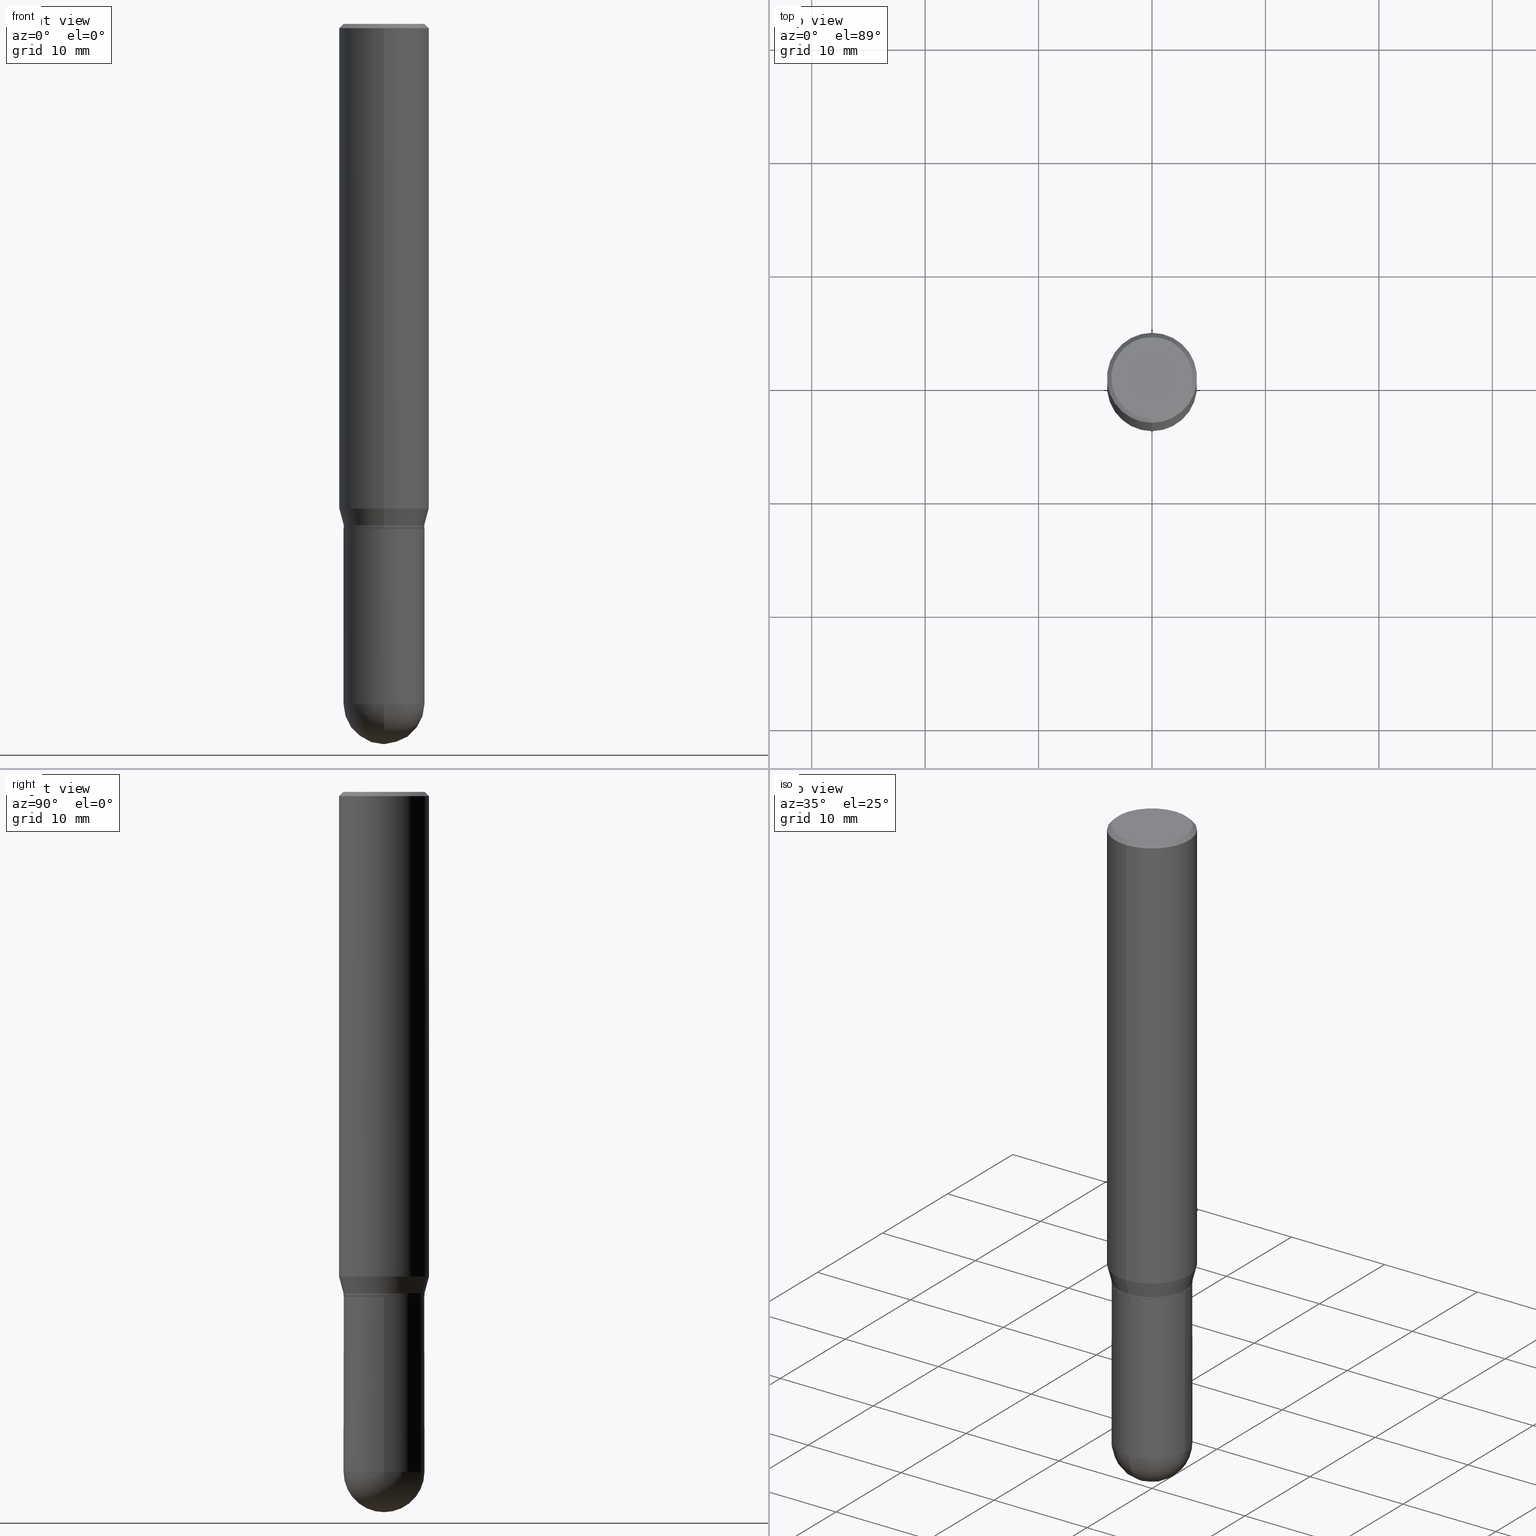
[diagram: canonical four-view strip — front | top / right | iso, engineering-drawing reading convention]
A machine part, canonical four-view strip (front | top / right | iso — engineering-drawing reading convention). The complete STEP part file that produces these views, byte-faithful:
ISO-10303-21;
HEADER;
FILE_DESCRIPTION (( 'STEP AP203' ),
    '1' );
FILE_NAME ('30922.STEP',
    '2024-03-08T15:46:29',
    ( '' ),
    ( '' ),
    'SwSTEP 2.0',
    'SolidWorks 2023',
    '' );
FILE_SCHEMA (( 'CONFIG_CONTROL_DESIGN' ));
ENDSEC;

DATA;
#1 = CONICAL_SURFACE ( 'NONE', #108, 0.1562500000000000000, 0.7853981633974485010 ) ;
#2 = FACE_OUTER_BOUND ( 'NONE', #22, .T. ) ;
#3 = AXIS2_PLACEMENT_3D ( 'NONE', #416, #60, #380 ) ;
#4 = VECTOR ( 'NONE', #77, 39.37007874015748143 ) ;
#5 = EDGE_CURVE ( 'NONE', #476, #144, #56, .T. ) ;
#6 = APPROVAL_STATUS ( 'not_yet_approved' ) ;
#7 = PLANE ( 'NONE',  #286 ) ;
#8 = DATE_AND_TIME ( #333, #392 ) ;
#9 = DIRECTION ( 'NONE',  ( -2.445561747179421972E-29, 3.491348242049456041E-15, 1.000000000000000000 ) ) ;
#10 = VERTEX_POINT ( 'NONE', #498 ) ;
#11 = EDGE_CURVE ( 'NONE', #120, #456, #127, .T. ) ;
#12 = DATE_AND_TIME ( #407, #422 ) ;
#13 = PLANE ( 'NONE',  #267 ) ;
#14 = CC_DESIGN_PERSON_AND_ORGANIZATION_ASSIGNMENT ( #209, #158, ( #189 ) ) ;
#15 = AXIS2_PLACEMENT_3D ( 'NONE', #444, #243, #335 ) ;
#16 = APPROVAL_DATE_TIME ( #87, #54 ) ;
#17 = DIRECTION ( 'NONE',  ( -6.982962677686265922E-15, -1.000000000000000000, 3.899854380677035588E-15 ) ) ;
#18 = FACE_OUTER_BOUND ( 'NONE', #25, .T. ) ;
#19 = ADVANCED_FACE ( 'NONE', ( #381 ), #469, .T. ) ;
#20 = DIRECTION ( 'NONE',  ( -2.445561747179421972E-29, 3.491348242049456041E-15, 1.000000000000000000 ) ) ;
#21 = AXIS2_PLACEMENT_3D ( 'NONE', #41, #488, #364 ) ;
#22 = EDGE_LOOP ( 'NONE', ( #32, #431, #277, #89 ) ) ;
#23 = DIRECTION ( 'NONE',  ( -2.445561747179421972E-29, 3.491348242049456041E-15, 1.000000000000000000 ) ) ;
#24 = CARTESIAN_POINT ( 'NONE',  ( 4.279733057563989082E-29, -6.109859423586548565E-15, -1.750000000000000222 ) ) ;
#25 = EDGE_LOOP ( 'NONE', ( #301, #114, #340, #42 ) ) ;
#26 = DIRECTION ( 'NONE',  ( -4.851104656540965064E-15, -0.7071067811865501263, -0.7071067811865449082 ) ) ;
#27 = ORIENTED_EDGE ( 'NONE', *, *, #173, .T. ) ;
#28 = AXIS2_PLACEMENT_3D ( 'NONE', #489, #9, #326 ) ;
#29 = LINE ( 'NONE', #309, #320 ) ;
#30 = ORIENTED_EDGE ( 'NONE', *, *, #426, .T. ) ;
#31 = ADVANCED_FACE ( 'NONE', ( #459 ), #183, .T. ) ;
#32 = ORIENTED_EDGE ( 'NONE', *, *, #307, .F. ) ;
#33 = DIRECTION ( 'NONE',  ( -2.445561747179421972E-29, 3.491348242049456041E-15, 1.000000000000000000 ) ) ;
#34 = AXIS2_PLACEMENT_3D ( 'NONE', #24, #74, #228 ) ;
#35 = ORIENTED_EDGE ( 'NONE', *, *, #281, .F. ) ;
#36 = DIRECTION ( 'NONE',  ( 2.445561747179421972E-29, -3.491348242049456041E-15, -1.000000000000000000 ) ) ;
#37 = APPROVAL_STATUS ( 'not_yet_approved' ) ;
#38 = CC_DESIGN_APPROVAL ( #401, ( #189 ) ) ;
#39 = DIRECTION ( 'NONE',  ( 2.445561747179421972E-29, -3.491348242049456041E-15, -1.000000000000000000 ) ) ;
#40 = COORDINATED_UNIVERSAL_TIME_OFFSET ( 5, 0, .BEHIND. ) ;
#41 = CARTESIAN_POINT ( 'NONE',  ( 0.000000000000000000, 0.000000000000000000, 0.000000000000000000 ) ) ;
#42 = ORIENTED_EDGE ( 'NONE', *, *, #348, .F. ) ;
#43 = DATE_AND_TIME ( #487, #491 ) ;
#44 = LINE ( 'NONE', #178, #415 ) ;
#45 = ORIENTED_EDGE ( 'NONE', *, *, #5, .T. ) ;
#46 = CALENDAR_DATE ( 2024, 8, 3 ) ;
#47 = DIRECTION ( 'NONE',  ( -2.445561747179421972E-29, 3.491348242049456041E-15, 1.000000000000000000 ) ) ;
#48 = AXIS2_PLACEMENT_3D ( 'NONE', #128, #288, #440 ) ;
#49 = CALENDAR_DATE ( 2024, 8, 3 ) ;
#50 = DIRECTION ( 'NONE',  ( 6.982962677686265922E-15, 1.000000000000000000, -3.491348242049455647E-15 ) ) ;
#51 = VERTEX_POINT ( 'NONE', #424 ) ;
#52 = CARTESIAN_POINT ( 'NONE',  ( 5.769839101313211634E-29, -8.237801070866517629E-15, -2.359399999999999942 ) ) ;
#53 = ADVANCED_FACE ( 'NONE', ( #420 ), #102, .T. ) ;
#54 = APPROVAL ( #37, 'UNSPECIFIED' ) ;
#55 = DIRECTION ( 'NONE',  ( -2.445561747179421972E-29, 3.491348242049455647E-15, 1.000000000000000000 ) ) ;
#56 = CIRCLE ( 'NONE', #351, 0.1406000000000000305 ) ;
#57 = AXIS2_PLACEMENT_3D ( 'NONE', #106, #505, #510 ) ;
#58 = EDGE_LOOP ( 'NONE', ( #100, #308, #376, #104 ) ) ;
#59 = EDGE_CURVE ( 'NONE', #51, #116, #433, .T. ) ;
#60 = DIRECTION ( 'NONE',  ( -2.445468806185136597E-29, 3.491481338843145583E-15, 1.000000000000000000 ) ) ;
#61 = EDGE_LOOP ( 'NONE', ( #438, #177 ) ) ;
#62 = CARTESIAN_POINT ( 'NONE',  ( 4.279733057563989082E-29, -6.109859423586548565E-15, -1.750000000000000222 ) ) ;
#63 = VERTEX_POINT ( 'NONE', #70 ) ;
#64 = FACE_OUTER_BOUND ( 'NONE', #86, .T. ) ;
#65 = VECTOR ( 'NONE', #305, 39.37007874015748143 ) ;
#66 = DIRECTION ( 'NONE',  ( -1.000000000000000000, 6.982962677686265922E-15, -4.883557194083112340E-29 ) ) ;
#67 = APPROVAL_PERSON_ORGANIZATION ( #200, #401, #92 ) ;
#68 = ADVANCED_FACE ( 'NONE', ( #80 ), #506, .T. ) ;
#69 = DIRECTION ( 'NONE',  ( -6.982962677686265133E-15, -1.000000000000000000, 3.491348242049456436E-15 ) ) ;
#70 = CARTESIAN_POINT ( 'NONE',  ( 0.1406000000000000028, -7.091896895458194566E-15, -1.750000000000000222 ) ) ;
#71 = ORIENTED_EDGE ( 'NONE', *, *, #221, .T. ) ;
#72 = ADVANCED_FACE ( 'NONE', ( #293 ), #238, .T. ) ;
#73 = AXIS2_PLACEMENT_3D ( 'NONE', #375, #20, #337 ) ;
#74 = DIRECTION ( 'NONE',  ( -2.445561747179421972E-29, 3.491348242049456041E-15, 1.000000000000000000 ) ) ;
#75 = VERTEX_POINT ( 'NONE', #159 ) ;
#76 = MANIFOLD_SOLID_BREP ( 'Body-Move/Copy2[2]', #285 ) ;
#77 = DIRECTION ( 'NONE',  ( -4.937700262164631661E-15, -0.7071067811865571207, 0.7071067811865379138 ) ) ;
#78 = CC_DESIGN_DATE_AND_TIME_ASSIGNMENT ( #12, #439, ( #189 ) ) ;
#79 = VERTEX_POINT ( 'NONE', #325 ) ;
#80 = FACE_OUTER_BOUND ( 'NONE', #225, .T. ) ;
#81 = ORIENTED_EDGE ( 'NONE', *, *, #11, .F. ) ;
#82 = CONICAL_SURFACE ( 'NONE', #99, 0.1401000000000000023, 0.7853981633974653764 ) ;
#83 = PERSON_AND_ORGANIZATION ( #91, #253 ) ;
#84 = CARTESIAN_POINT ( 'NONE',  ( 9.863434782231850151E-16, 0.1412499999999999867, -5.152038148636808650E-16 ) ) ;
#85 = EDGE_CURVE ( 'NONE', #208, #63, #298, .T. ) ;
#86 = EDGE_LOOP ( 'NONE', ( #303, #350, #414, #418 ) ) ;
#87 = DATE_AND_TIME ( #46, #241 ) ;
#88 = DIRECTION ( 'NONE',  ( 5.024295867788147587E-15, 0.7071067811865620056, 0.7071067811865330288 ) ) ;
#89 = ORIENTED_EDGE ( 'NONE', *, *, #270, .F. ) ;
#90 = CARTESIAN_POINT ( 'NONE',  ( 3.668342620769144169E-31, -5.237022363074199050E-17, -0.01500000000000004455 ) ) ;
#91 = PERSON ( 'UNSPECIFIED', 'UNSPECIFIED', 'UNSPECIFIED', ('UNSPECIFIED'), ('UNSPECIFIED'), ('UNSPECIFIED') ) ;
#92 = APPROVAL_ROLE ( '' ) ;
#93 = CARTESIAN_POINT ( 'NONE',  ( -9.990230864786434913E-16, -0.1406000000000083017, -2.359399999999999498 ) ) ;
#94 = CIRCLE ( 'NONE', #449, 0.1562500000000000000 ) ;
#95 = ADVANCED_FACE ( 'NONE', ( #250 ), #13, .F. ) ;
#96 = CARTESIAN_POINT ( 'NONE',  ( 5.769839101313211634E-29, -8.237801070866517629E-15, -2.359399999999999942 ) ) ;
#97 = DIRECTION ( 'NONE',  ( 1.000000000000000000, -6.982962677686270655E-15, 0.000000000000000000 ) ) ;
#98 = DIRECTION ( 'NONE',  ( 1.839019923739597160E-15, 0.2588190451025245142, 0.9659258262890673130 ) ) ;
#99 = AXIS2_PLACEMENT_3D ( 'NONE', #145, #497, #494 ) ;
#100 = ORIENTED_EDGE ( 'NONE', *, *, #213, .F. ) ;
#101 = FACE_OUTER_BOUND ( 'NONE', #429, .T. ) ;
#102 = CYLINDRICAL_SURFACE ( 'NONE', #490, 0.1562500000000000000 ) ;
#103 = LINE ( 'NONE', #300, #148 ) ;
#104 = ORIENTED_EDGE ( 'NONE', *, *, #492, .F. ) ;
#105 = EDGE_CURVE ( 'NONE', #51, #79, #134, .T. ) ;
#106 = CARTESIAN_POINT ( 'NONE',  ( 3.668342620769144169E-31, -5.237022363074199050E-17, -0.01500000000000004455 ) ) ;
#107 = CC_DESIGN_PERSON_AND_ORGANIZATION_ASSIGNMENT ( #249, #121, ( #378 ) ) ;
#108 = AXIS2_PLACEMENT_3D ( 'NONE', #135, #39, #296 ) ;
#109 = DIRECTION ( 'NONE',  ( -1.807323732225326984E-15, -0.2588190451025177419, 0.9659258262890690894 ) ) ;
#110 = AXIS2_PLACEMENT_3D ( 'NONE', #356, #266, #156 ) ;
#111 = LENGTH_MEASURE_WITH_UNIT ( LENGTH_MEASURE( 0.02539999999999999897 ), #357 );
#112 = DIRECTION ( 'NONE',  ( 1.000000000000000000, -6.982962677686270655E-15, 0.000000000000000000 ) ) ;
#113 = CARTESIAN_POINT ( 'NONE',  ( 0.000000000000000000, 0.000000000000000000, 0.000000000000000000 ) ) ;
#114 = ORIENTED_EDGE ( 'NONE', *, *, #387, .T. ) ;
#115 = DIRECTION ( 'NONE',  ( 1.000000000000000000, 0.000000000000000000, 0.000000000000000000 ) ) ;
#116 = VERTEX_POINT ( 'NONE', #210 ) ;
#117 = CC_DESIGN_PERSON_AND_ORGANIZATION_ASSIGNMENT ( #202, #242, ( #344 ) ) ;
#118 = AXIS2_PLACEMENT_3D ( 'NONE', #417, #413, #500 ) ;
#119 = CC_DESIGN_SECURITY_CLASSIFICATION ( #378, ( #344 ) ) ;
#120 = VERTEX_POINT ( 'NONE', #479 ) ;
#121 = PERSON_AND_ORGANIZATION_ROLE ( 'classification_officer' ) ;
#122 = ORIENTED_EDGE ( 'NONE', *, *, #462, .F. ) ;
#123 = EDGE_CURVE ( 'NONE', #75, #409, #195, .T. ) ;
#124 = COORDINATED_UNIVERSAL_TIME_OFFSET ( 5, 0, .BEHIND. ) ;
#125 = DIRECTION ( 'NONE',  ( -2.445561747179421972E-29, 3.491348242049456041E-15, 1.000000000000000000 ) ) ;
#126 = ORIENTED_EDGE ( 'NONE', *, *, #123, .F. ) ;
#127 = CIRCLE ( 'NONE', #231, 0.1401000000000000023 ) ;
#128 = CARTESIAN_POINT ( 'NONE',  ( 4.255277440092194484E-29, -6.074945941166053740E-15, -1.739999999999999991 ) ) ;
#129 = APPROVAL_ROLE ( '' ) ;
#130 = UNCERTAINTY_MEASURE_WITH_UNIT (LENGTH_MEASURE( 1.000000000000000082E-05 ), #152, 'distance_accuracy_value', 'NONE');
#131 = CARTESIAN_POINT ( 'NONE',  ( 5.757815463287349061E-29, -8.255019604862529009E-15, -2.359399999999999942 ) ) ;
#132 = DATE_AND_TIME ( #49, #136 ) ;
#133 = DIRECTION ( 'NONE',  ( 2.445561747179421972E-29, -3.491348242049455647E-15, -1.000000000000000000 ) ) ;
#134 = CIRCLE ( 'NONE', #427, 0.1405999999999999195 ) ;
#135 = CARTESIAN_POINT ( 'NONE',  ( 3.668342620769144169E-31, -5.237022363074199050E-17, -0.01500000000000004455 ) ) ;
#136 = LOCAL_TIME ( 10, 46, 29.00000000000000000, #481 ) ;
#137 = FACE_OUTER_BOUND ( 'NONE', #323, .T. ) ;
#138 = DIRECTION ( 'NONE',  ( -2.445561747179421692E-29, 3.491348242049455647E-15, 1.000000000000000000 ) ) ;
#139 = ORIENTED_EDGE ( 'NONE', *, *, #313, .T. ) ;
#140 = PLANE ( 'NONE',  #162 ) ;
#141 = AXIS2_PLACEMENT_3D ( 'NONE', #317, #66, #355 ) ;
#142 = DIRECTION ( 'NONE',  ( 1.000000000000000000, -6.982962677686268288E-15, 4.876176775795936353E-29 ) ) ;
#143 = CARTESIAN_POINT ( 'NONE',  ( 6.107660196449910766E-29, -8.737312614105869844E-15, -2.500000000000000000 ) ) ;
#144 = VERTEX_POINT ( 'NONE', #398 ) ;
#145 = CARTESIAN_POINT ( 'NONE',  ( 4.279733057563989082E-29, -6.109859423586548565E-15, -1.750000000000000222 ) ) ;
#146 = ORIENTED_EDGE ( 'NONE', *, *, #11, .T. ) ;
#147 = LINE ( 'NONE', #273, #4 ) ;
#148 = VECTOR ( 'NONE', #26, 39.37007874015748143 ) ;
#149 = CARTESIAN_POINT ( 'NONE',  ( 0.000000000000000000, 0.000000000000000000, 0.000000000000000000 ) ) ;
#150 =( NAMED_UNIT ( * ) SI_UNIT ( $, .STERADIAN. ) SOLID_ANGLE_UNIT ( ) );
#151 = ORIENTED_EDGE ( 'NONE', *, *, #213, .T. ) ;
#152 =( CONVERSION_BASED_UNIT ( 'INCH', #111 ) LENGTH_UNIT ( ) NAMED_UNIT ( #198 ) );
#153 = CARTESIAN_POINT ( 'NONE',  ( 5.757815463287349061E-29, -8.255019604862529009E-15, -2.359399999999999942 ) ) ;
#154 = EDGE_LOOP ( 'NONE', ( #27, #185, #196, #385 ) ) ;
#155 = AXIS2_PLACEMENT_3D ( 'NONE', #96, #458, #97 ) ;
#156 = DIRECTION ( 'NONE',  ( -6.982962677686265922E-15, -1.000000000000000000, 3.491348242049456436E-15 ) ) ;
#157 = ADVANCED_FACE ( 'NONE', ( #203 ), #1, .T. ) ;
#158 = PERSON_AND_ORGANIZATION_ROLE ( 'creator' ) ;
#159 = CARTESIAN_POINT ( 'NONE',  ( -1.091087918388478779E-15, -0.1562500000000000833, -0.01499999999999949811 ) ) ;
#160 = EDGE_LOOP ( 'NONE', ( #395, #471, #283, #287 ) ) ;
#161 = DIRECTION ( 'NONE',  ( 1.000000000000000000, -6.982962677686265133E-15, 0.000000000000000000 ) ) ;
#162 = AXIS2_PLACEMENT_3D ( 'NONE', #62, #55, #258 ) ;
#163 = CIRCLE ( 'NONE', #268, 0.1405999999999999195 ) ;
#164 = CARTESIAN_POINT ( 'NONE',  ( 4.279733057563989082E-29, -6.109859423586548565E-15, -1.750000000000000222 ) ) ;
#165 = APPROVAL_DATE_TIME ( #43, #176 ) ;
#166 = DIRECTION ( 'NONE',  ( -2.445561747179421692E-29, 3.491348242049455647E-15, 1.000000000000000000 ) ) ;
#167 = ORIENTED_EDGE ( 'NONE', *, *, #261, .F. ) ;
#168 = CARTESIAN_POINT ( 'NONE',  ( 0.1406000000000000583, -8.155751259403701439E-15, -2.359399999999999942 ) ) ;
#169 = VECTOR ( 'NONE', #166, 39.37007874015748143 ) ;
#170 = DIRECTION ( 'NONE',  ( 1.000000000000000000, -6.982962677686265133E-15, 0.000000000000000000 ) ) ;
#171 = CC_DESIGN_APPROVAL ( #54, ( #344 ) ) ;
#172 = ADVANCED_FACE ( 'NONE', ( #199 ), #7, .F. ) ;
#173 = EDGE_CURVE ( 'NONE', #456, #120, #399, .T. ) ;
#174 = DIRECTION ( 'NONE',  ( -6.982962677686265133E-15, -1.000000000000000000, 3.496765431890256920E-15 ) ) ;
#175 = LINE ( 'NONE', #460, #391 ) ;
#176 = APPROVAL ( #404, 'UNSPECIFIED' ) ;
#177 = ORIENTED_EDGE ( 'NONE', *, *, #307, .T. ) ;
#178 = CARTESIAN_POINT ( 'NONE',  ( -1.091087918388478976E-15, -0.1562500000000000000, 5.455231628202275927E-16 ) ) ;
#179 = CONICAL_SURFACE ( 'NONE', #251, 0.1405999999999999195, 0.2617993877991497964 ) ;
#180 = CIRCLE ( 'NONE', #57, 0.1562500000000000000 ) ;
#181 = EDGE_LOOP ( 'NONE', ( #496, #146, #403, #425 ) ) ;
#182 = LINE ( 'NONE', #346, #65 ) ;
#183 = CYLINDRICAL_SURFACE ( 'NONE', #421, 0.1406000000000000028 ) ;
#184 = CARTESIAN_POINT ( 'NONE',  ( 1.110223024625197561E-15, 0.1562499999999941436, -1.681593404861547514 ) ) ;
#185 = ORIENTED_EDGE ( 'NONE', *, *, #194, .T. ) ;
#186 = FACE_OUTER_BOUND ( 'NONE', #160, .T. ) ;
#187 = ORIENTED_EDGE ( 'NONE', *, *, #358, .F. ) ;
#188 = CARTESIAN_POINT ( 'NONE',  ( 0.000000000000000000, 0.000000000000000000, 0.000000000000000000 ) ) ;
#189 = PRODUCT_DEFINITION ( 'UNKNOWN', '', #344, #396 ) ;
#190 = PERSON_AND_ORGANIZATION ( #91, #253 ) ;
#191 = ORIENTED_EDGE ( 'NONE', *, *, #492, .T. ) ;
#192 = APPLICATION_CONTEXT ( 'configuration controlled 3d designs of mechanical parts and assemblies' ) ;
#193 = FACE_OUTER_BOUND ( 'NONE', #58, .T. ) ;
#194 = EDGE_CURVE ( 'NONE', #120, #10, #374, .T. ) ;
#195 = CIRCLE ( 'NONE', #371, 0.1562500000000000000 ) ;
#196 = ORIENTED_EDGE ( 'NONE', *, *, #299, .F. ) ;
#197 = APPROVAL_PERSON_ORGANIZATION ( #83, #176, #324 ) ;
#198 = DIMENSIONAL_EXPONENTS ( 1.000000000000000000, 0.000000000000000000, 0.000000000000000000, 0.000000000000000000, 0.000000000000000000, 0.000000000000000000, 0.000000000000000000 ) ;
#199 = FACE_OUTER_BOUND ( 'NONE', #280, .T. ) ;
#200 = PERSON_AND_ORGANIZATION ( #91, #253 ) ;
#201 = CARTESIAN_POINT ( 'NONE',  ( 1.110223024625156343E-15, 0.1562500000000000000, -5.455231628202275927E-16 ) ) ;
#202 = PERSON_AND_ORGANIZATION ( #91, #253 ) ;
#203 = FACE_OUTER_BOUND ( 'NONE', #229, .T. ) ;
#204 = AXIS2_PLACEMENT_3D ( 'NONE', #164, #47, #17 ) ;
#205 = COORDINATED_UNIVERSAL_TIME_OFFSET ( 5, 0, .BEHIND. ) ;
#206 = ADVANCED_FACE ( 'NONE', ( #18 ), #482, .T. ) ;
#207 = CARTESIAN_POINT ( 'NONE',  ( 4.279570410823989044E-29, -6.110092342975505460E-15, -1.750000000000000222 ) ) ;
#208 = VERTEX_POINT ( 'NONE', #168 ) ;
#209 = PERSON_AND_ORGANIZATION ( #91, #253 ) ;
#210 = CARTESIAN_POINT ( 'NONE',  ( -1.091087918388437956E-15, -0.1562500000000058842, -1.681593404861546404 ) ) ;
#211 = DIRECTION ( 'NONE',  ( -2.445468806185136597E-29, 3.491481338843145583E-15, 1.000000000000000000 ) ) ;
#212 = PRODUCT ( '30922', '30922', '', ( #274 ) ) ;
#213 = EDGE_CURVE ( 'NONE', #475, #409, #331, .T. ) ;
#214 = CIRCLE ( 'NONE', #118, 0.1412499999999999867 ) ;
#215 = CARTESIAN_POINT ( 'NONE',  ( 4.112440505238597920E-29, -5.871028177905320877E-15, -1.681593404861546848 ) ) ;
#216 = ORIENTED_EDGE ( 'NONE', *, *, #485, .F. ) ;
#217 = FACE_OUTER_BOUND ( 'NONE', #154, .T. ) ;
#218 = CARTESIAN_POINT ( 'NONE',  ( 4.278510276690399296E-29, -6.108113749465524534E-15, -1.749500000000000277 ) ) ;
#219 = VERTEX_POINT ( 'NONE', #368 ) ;
#220 = CARTESIAN_POINT ( 'NONE',  ( -0.1406000000000000028, -6.174923620442310269E-15, -1.750000000000000222 ) ) ;
#221 = EDGE_CURVE ( 'NONE', #116, #475, #465, .T. ) ;
#222 = AXIS2_PLACEMENT_3D ( 'NONE', #52, #211, #383 ) ;
#223 = VECTOR ( 'NONE', #138, 39.37007874015748143 ) ;
#224 = AXIS2_PLACEMENT_3D ( 'NONE', #113, #361, #69 ) ;
#225 = EDGE_LOOP ( 'NONE', ( #512, #406, #234, #332 ) ) ;
#226 = CARTESIAN_POINT ( 'NONE',  ( 9.818045524827470871E-16, 0.1405999999999918426, -2.359400000000000386 ) ) ;
#227 = ORIENTED_EDGE ( 'NONE', *, *, #236, .F. ) ;
#228 = DIRECTION ( 'NONE',  ( -6.982962677686265922E-15, -1.000000000000000000, 3.899854380677035588E-15 ) ) ;
#229 = EDGE_LOOP ( 'NONE', ( #442, #216, #360, #191 ) ) ;
#230 = MANIFOLD_SOLID_BREP ( 'Body-Move/Copy2[1]', #507 ) ;
#231 = AXIS2_PLACEMENT_3D ( 'NONE', #272, #461, #316 ) ;
#232 = CC_DESIGN_APPROVAL ( #176, ( #378 ) ) ;
#233 = DIRECTION ( 'NONE',  ( 6.982962677686265922E-15, 1.000000000000000000, -3.885985766236502230E-15 ) ) ;
#234 = ORIENTED_EDGE ( 'NONE', *, *, #348, .T. ) ;
#235 = CYLINDRICAL_SURFACE ( 'NONE', #224, 0.1562500000000000000 ) ;
#236 = EDGE_CURVE ( 'NONE', #342, #63, #499, .T. ) ;
#237 = ORIENTED_EDGE ( 'NONE', *, *, #338, .T. ) ;
#238 = CYLINDRICAL_SURFACE ( 'NONE', #15, 0.1406000000000000028 ) ;
#239 = CIRCLE ( 'NONE', #315, 0.1406000000000000860 ) ;
#240 = ORIENTED_EDGE ( 'NONE', *, *, #173, .F. ) ;
#241 = LOCAL_TIME ( 10, 46, 29.00000000000000000, #124 ) ;
#242 = PERSON_AND_ORGANIZATION_ROLE ( 'creator' ) ;
#243 = DIRECTION ( 'NONE',  ( -2.445468806185136597E-29, 3.491481338843145583E-15, 1.000000000000000000 ) ) ;
#244 = EDGE_LOOP ( 'NONE', ( #45, #501, #187, #394, #30 ) ) ;
#245 = PERSON_AND_ORGANIZATION_ROLE ( 'design_supplier' ) ;
#246 = DIRECTION ( 'NONE',  ( -1.000000000000000000, 7.105427357601001070E-15, -4.926315508542082329E-29 ) ) ;
#247 = EDGE_CURVE ( 'NONE', #79, #51, #328, .T. ) ;
#248 = VERTEX_POINT ( 'NONE', #93 ) ;
#249 = PERSON_AND_ORGANIZATION ( #91, #253 ) ;
#250 = FACE_OUTER_BOUND ( 'NONE', #61, .T. ) ;
#251 = AXIS2_PLACEMENT_3D ( 'NONE', #255, #419, #264 ) ;
#252 = COORDINATED_UNIVERSAL_TIME_OFFSET ( 5, 0, .BEHIND. ) ;
#253 = ORGANIZATION ( 'UNSPECIFIED', 'UNSPECIFIED', '' ) ;
#254 = CARTESIAN_POINT ( 'NONE',  ( 0.1406000000000000028, -9.818045524826893030E-16, 6.855904546769086274E-30 ) ) ;
#255 = CARTESIAN_POINT ( 'NONE',  ( 4.255277440092194484E-29, -6.074945941166053740E-15, -1.739999999999999991 ) ) ;
#256 = EDGE_CURVE ( 'NONE', #319, #248, #239, .T. ) ;
#257 = EDGE_LOOP ( 'NONE', ( #71, #151, #126, #167 ) ) ;
#258 = DIRECTION ( 'NONE',  ( -6.982962677686265922E-15, -1.000000000000000000, 3.491348242049455647E-15 ) ) ;
#259 = VECTOR ( 'NONE', #109, 39.37007874015748143 ) ;
#260 = CARTESIAN_POINT ( 'NONE',  ( 1.110223024625197561E-15, 0.1562499999999999445, -0.01500000000000059099 ) ) ;
#261 = EDGE_CURVE ( 'NONE', #116, #75, #44, .T. ) ;
#262 = DIRECTION ( 'NONE',  ( -2.445561747179421692E-29, 3.491348242049455647E-15, 1.000000000000000000 ) ) ;
#263 = VERTEX_POINT ( 'NONE', #412 ) ;
#264 = DIRECTION ( 'NONE',  ( -6.982962677686266711E-15, -1.000000000000000000, 3.885985766236507752E-15 ) ) ;
#265 = CARTESIAN_POINT ( 'NONE',  ( 5.769839101313211634E-29, -8.237801070866517629E-15, -2.359399999999999942 ) ) ;
#266 = DIRECTION ( 'NONE',  ( -2.445561747179421972E-29, 3.491348242049456041E-15, 1.000000000000000000 ) ) ;
#267 = AXIS2_PLACEMENT_3D ( 'NONE', #84, #133, #50 ) ;
#268 = AXIS2_PLACEMENT_3D ( 'NONE', #352, #430, #349 ) ;
#269 = EDGE_LOOP ( 'NONE', ( #122, #434, #345, #466 ) ) ;
#270 = EDGE_CURVE ( 'NONE', #263, #409, #182, .T. ) ;
#271 =( NAMED_UNIT ( * ) PLANE_ANGLE_UNIT ( ) SI_UNIT ( $, .RADIAN. ) );
#272 = CARTESIAN_POINT ( 'NONE',  ( 4.279733057563989082E-29, -6.109859423586548565E-15, -1.750000000000000222 ) ) ;
#273 = CARTESIAN_POINT ( 'NONE',  ( -9.783130711438031058E-16, -0.1401000000000061085, -1.749999999999999556 ) ) ;
#274 = MECHANICAL_CONTEXT ( 'NONE', #192, 'mechanical' ) ;
#275 = AXIS2_PLACEMENT_3D ( 'NONE', #149, #33, #334 ) ;
#276 = AXIS2_PLACEMENT_3D ( 'NONE', #188, #470, #115 ) ;
#277 = ORIENTED_EDGE ( 'NONE', *, *, #123, .T. ) ;
#278 = DIRECTION ( 'NONE',  ( -1.000000000000000000, 6.982962677686265922E-15, -4.883557194083112340E-29 ) ) ;
#279 = ADVANCED_FACE ( 'NONE', ( #502 ), #82, .T. ) ;
#280 = EDGE_LOOP ( 'NONE', ( #291, #369 ) ) ;
#281 = EDGE_CURVE ( 'NONE', #144, #342, #175, .T. ) ;
#282 = CARTESIAN_POINT ( 'NONE',  ( 0.000000000000000000, 0.000000000000000000, 0.000000000000000000 ) ) ;
#283 = ORIENTED_EDGE ( 'NONE', *, *, #426, .F. ) ;
#284 = CARTESIAN_POINT ( 'NONE',  ( 9.954703727999429753E-16, 0.1400999999999938961, -1.750000000000000666 ) ) ;
#285 = CLOSED_SHELL ( 'NONE', ( #206, #436, #453, #53, #322, #359, #445, #157, #95, #366, #279, #68 ) ) ;
#286 = AXIS2_PLACEMENT_3D ( 'NONE', #447, #408, #370 ) ;
#287 = ORIENTED_EDGE ( 'NONE', *, *, #338, .F. ) ;
#288 = DIRECTION ( 'NONE',  ( -2.445561747179421972E-29, 3.491348242049456041E-15, 1.000000000000000000 ) ) ;
#289 = PRODUCT_DEFINITION_SHAPE ( 'NONE', 'NONE',  #189 ) ;
#290 = EDGE_CURVE ( 'NONE', #486, #75, #103, .T. ) ;
#291 = ORIENTED_EDGE ( 'NONE', *, *, #358, .T. ) ;
#292 = DATE_TIME_ROLE ( 'classification_date' ) ;
#293 = FACE_OUTER_BOUND ( 'NONE', #509, .T. ) ;
#294 = CC_DESIGN_DATE_AND_TIME_ASSIGNMENT ( #8, #292, ( #378 ) ) ;
#295 = SHAPE_DEFINITION_REPRESENTATION ( #289, #467 ) ;
#296 = DIRECTION ( 'NONE',  ( 6.982962677686265133E-15, 1.000000000000000000, -3.496765431890256920E-15 ) ) ;
#297 = AXIS2_PLACEMENT_3D ( 'NONE', #207, #484, #161 ) ;
#298 = LINE ( 'NONE', #254, #377 ) ;
#299 = EDGE_CURVE ( 'NONE', #219, #10, #508, .T. ) ;
#300 = CARTESIAN_POINT ( 'NONE',  ( -1.071952812151801215E-15, -0.1562500000000000833, -0.01499999999999949811 ) ) ;
#301 = ORIENTED_EDGE ( 'NONE', *, *, #299, .T. ) ;
#302 = LINE ( 'NONE', #455, #448 ) ;
#303 = ORIENTED_EDGE ( 'NONE', *, *, #397, .F. ) ;
#304 = CIRCLE ( 'NONE', #362, 0.1406000000000000028 ) ;
#305 = DIRECTION ( 'NONE',  ( 4.937700262164548831E-15, 0.7071067811865452413, -0.7071067811865497932 ) ) ;
#306 = CIRCLE ( 'NONE', #110, 0.1412499999999999867 ) ;
#307 = EDGE_CURVE ( 'NONE', #486, #263, #214, .T. ) ;
#308 = ORIENTED_EDGE ( 'NONE', *, *, #384, .T. ) ;
#309 = CARTESIAN_POINT ( 'NONE',  ( -9.818045524826885142E-16, -0.1405999999999999195, 4.908835628321532868E-16 ) ) ;
#310 = DIRECTION ( 'NONE',  ( -2.445468806185136597E-29, 3.491481338843145583E-15, 1.000000000000000000 ) ) ;
#311 = DIRECTION ( 'NONE',  ( -2.445468806185136877E-29, 3.491481338843145188E-15, 1.000000000000000000 ) ) ;
#312 = CARTESIAN_POINT ( 'NONE',  ( -9.818045524826459157E-16, -0.1406000000000059980, -1.739999999999999547 ) ) ;
#313 = EDGE_CURVE ( 'NONE', #144, #248, #473, .T. ) ;
#314 = CC_DESIGN_PERSON_AND_ORGANIZATION_ASSIGNMENT ( #190, #330, ( #212 ) ) ;
#315 = AXIS2_PLACEMENT_3D ( 'NONE', #131, #246, #405 ) ;
#316 = DIRECTION ( 'NONE',  ( -6.982962677686265922E-15, -1.000000000000000000, 3.899854380677035588E-15 ) ) ;
#317 = CARTESIAN_POINT ( 'NONE',  ( 5.757815463287349061E-29, -8.255019604862529009E-15, -2.359399999999999942 ) ) ;
#318 = CARTESIAN_POINT ( 'NONE',  ( 3.668342620769144169E-31, -5.237022363074199050E-17, -0.01500000000000004455 ) ) ;
#319 = VERTEX_POINT ( 'NONE', #143 ) ;
#320 = VECTOR ( 'NONE', #341, 39.37007874015748143 ) ;
#321 = CIRCLE ( 'NONE', #354, 0.1406000000000000860 ) ;
#322 = ADVANCED_FACE ( 'NONE', ( #101 ), #179, .T. ) ;
#323 = EDGE_LOOP ( 'NONE', ( #240, #81 ) ) ;
#324 = APPROVAL_ROLE ( '' ) ;
#325 = CARTESIAN_POINT ( 'NONE',  ( 1.054623055551970126E-15, 0.1405999999999938410, -1.740000000000000657 ) ) ;
#326 = DIRECTION ( 'NONE',  ( -6.982962677686265133E-15, -1.000000000000000000, 3.496765431890256920E-15 ) ) ;
#327 = APPLICATION_CONTEXT ( 'configuration controlled 3d designs of mechanical parts and assemblies' ) ;
#328 = CIRCLE ( 'NONE', #48, 0.1405999999999999195 ) ;
#329 = CONICAL_SURFACE ( 'NONE', #410, 0.1562500000000000000, 0.7853981633974485010 ) ;
#330 = PERSON_AND_ORGANIZATION_ROLE ( 'design_owner' ) ;
#331 = LINE ( 'NONE', #201, #169 ) ;
#332 = ORIENTED_EDGE ( 'NONE', *, *, #247, .F. ) ;
#333 = CALENDAR_DATE ( 2024, 8, 3 ) ;
#334 = DIRECTION ( 'NONE',  ( -6.982962677686266711E-15, -1.000000000000000000, 3.491348242049456436E-15 ) ) ;
#335 = DIRECTION ( 'NONE',  ( 1.000000000000000000, -6.982962677686268288E-15, 4.876176775795936353E-29 ) ) ;
#336 = APPROVAL_PERSON_ORGANIZATION ( #373, #54, #129 ) ;
#337 = DIRECTION ( 'NONE',  ( -6.982962677686266711E-15, -1.000000000000000000, 3.885985766236507752E-15 ) ) ;
#338 = EDGE_CURVE ( 'NONE', #248, #208, #353, .T. ) ;
#339 = LINE ( 'NONE', #495, #223 ) ;
#340 = ORIENTED_EDGE ( 'NONE', *, *, #105, .F. ) ;
#341 = DIRECTION ( 'NONE',  ( -2.445561747179421692E-29, 3.491348242049455647E-15, 1.000000000000000000 ) ) ;
#342 = VERTEX_POINT ( 'NONE', #220 ) ;
#343 = DIRECTION ( 'NONE',  ( -6.982962677686265133E-15, -1.000000000000000000, 3.885985766236507752E-15 ) ) ;
#344 = PRODUCT_DEFINITION_FORMATION_WITH_SPECIFIED_SOURCE ( 'ANY', '', #212, .NOT_KNOWN. ) ;
#345 = ORIENTED_EDGE ( 'NONE', *, *, #313, .F. ) ;
#346 = CARTESIAN_POINT ( 'NONE',  ( 1.091087918388479371E-15, 0.1562499999999999445, -0.01500000000000059099 ) ) ;
#347 = DIRECTION ( 'NONE',  ( -2.445561747179421972E-29, 3.491348242049456041E-15, 1.000000000000000000 ) ) ;
#348 = EDGE_CURVE ( 'NONE', #219, #51, #29, .T. ) ;
#349 = DIRECTION ( 'NONE',  ( -6.982962677686265133E-15, -1.000000000000000000, 3.885985766236507752E-15 ) ) ;
#350 = ORIENTED_EDGE ( 'NONE', *, *, #247, .T. ) ;
#351 = AXIS2_PLACEMENT_3D ( 'NONE', #265, #310, #112 ) ;
#352 = CARTESIAN_POINT ( 'NONE',  ( 4.278510276690399296E-29, -6.108113749465524534E-15, -1.749500000000000277 ) ) ;
#353 = CIRCLE ( 'NONE', #222, 0.1406000000000000305 ) ;
#354 = AXIS2_PLACEMENT_3D ( 'NONE', #472, #468, #423 ) ;
#355 = DIRECTION ( 'NONE',  ( 6.982962677686265922E-15, 1.000000000000000000, -3.885985766236502230E-15 ) ) ;
#356 = CARTESIAN_POINT ( 'NONE',  ( 1.078535560812420020E-45, -1.539745720415049667E-31, -4.410175134839037759E-17 ) ) ;
#357 =( LENGTH_UNIT ( ) NAMED_UNIT ( * ) SI_UNIT ( $, .METRE. ) );
#358 = EDGE_CURVE ( 'NONE', #63, #342, #304, .T. ) ;
#359 = ADVANCED_FACE ( 'NONE', ( #64 ), #457, .T. ) ;
#360 = ORIENTED_EDGE ( 'NONE', *, *, #270, .T. ) ;
#361 = DIRECTION ( 'NONE',  ( -2.445561747179421972E-29, 3.491348242049456041E-15, 1.000000000000000000 ) ) ;
#362 = AXIS2_PLACEMENT_3D ( 'NONE', #382, #454, #170 ) ;
#363 = ORIENTED_EDGE ( 'NONE', *, *, #59, .F. ) ;
#364 = DIRECTION ( 'NONE',  ( -6.982962677686266711E-15, -1.000000000000000000, 3.491348242049456436E-15 ) ) ;
#365 = ORIENTED_EDGE ( 'NONE', *, *, #105, .T. ) ;
#366 = ADVANCED_FACE ( 'NONE', ( #137 ), #140, .F. ) ;
#367 = SECURITY_CLASSIFICATION_LEVEL ( 'unclassified' ) ;
#368 = CARTESIAN_POINT ( 'NONE',  ( -9.818045524826451268E-16, -0.1406000000000059702, -1.749499999999999833 ) ) ;
#369 = ORIENTED_EDGE ( 'NONE', *, *, #236, .T. ) ;
#370 = DIRECTION ( 'NONE',  ( -1.000000000000000000, 6.982962677686265922E-15, -4.876176775795935793E-29 ) ) ;
#371 = AXIS2_PLACEMENT_3D ( 'NONE', #90, #452, #372 ) ;
#372 = DIRECTION ( 'NONE',  ( -6.982962677686265133E-15, -1.000000000000000000, 3.496765431890256920E-15 ) ) ;
#373 = PERSON_AND_ORGANIZATION ( #91, #253 ) ;
#374 = LINE ( 'NONE', #284, #483 ) ;
#375 = CARTESIAN_POINT ( 'NONE',  ( 4.255277440092194484E-29, -6.074945941166053740E-15, -1.739999999999999991 ) ) ;
#376 = ORIENTED_EDGE ( 'NONE', *, *, #261, .T. ) ;
#377 = VECTOR ( 'NONE', #411, 39.37007874015748143 ) ;
#378 = SECURITY_CLASSIFICATION ( '', '', #367 ) ;
#379 = DIRECTION ( 'NONE',  ( -2.445561747179421972E-29, 3.491348242049456041E-15, 1.000000000000000000 ) ) ;
#380 = DIRECTION ( 'NONE',  ( 1.000000000000000000, -6.982962677686270655E-15, 0.000000000000000000 ) ) ;
#381 = FACE_OUTER_BOUND ( 'NONE', #269, .T. ) ;
#382 = CARTESIAN_POINT ( 'NONE',  ( 4.279570410823989044E-29, -6.110092342975505460E-15, -1.750000000000000222 ) ) ;
#383 = DIRECTION ( 'NONE',  ( 1.000000000000000000, -6.982962677686270655E-15, 0.000000000000000000 ) ) ;
#384 = EDGE_CURVE ( 'NONE', #475, #116, #94, .T. ) ;
#385 = ORIENTED_EDGE ( 'NONE', *, *, #493, .F. ) ;
#386 = CARTESIAN_POINT ( 'NONE',  ( -1.020499077168515012E-15, -0.1412499999999999867, 4.490511878410953232E-16 ) ) ;
#387 = EDGE_CURVE ( 'NONE', #10, #79, #339, .T. ) ;
#388 = DIRECTION ( 'NONE',  ( -2.445468806185136597E-29, 3.491481338843145583E-15, 1.000000000000000000 ) ) ;
#389 = CARTESIAN_POINT ( 'NONE',  ( 0.000000000000000000, 0.000000000000000000, 0.000000000000000000 ) ) ;
#390 = APPLICATION_PROTOCOL_DEFINITION ( 'international standard', 'config_control_design', 1994, #192 ) ;
#391 = VECTOR ( 'NONE', #311, 39.37007874015748143 ) ;
#392 = LOCAL_TIME ( 10, 46, 29.00000000000000000, #252 ) ;
#393 = CARTESIAN_POINT ( 'NONE',  ( -9.783130711438031058E-16, -0.1401000000000061085, -1.749999999999999556 ) ) ;
#394 = ORIENTED_EDGE ( 'NONE', *, *, #85, .F. ) ;
#395 = ORIENTED_EDGE ( 'NONE', *, *, #256, .F. ) ;
#396 = DESIGN_CONTEXT ( 'detailed design', #327, 'design' ) ;
#397 = EDGE_CURVE ( 'NONE', #79, #475, #302, .T. ) ;
#398 = CARTESIAN_POINT ( 'NONE',  ( -0.1406000000000000583, -6.174923620442310269E-15, -2.359399999999999942 ) ) ;
#399 = CIRCLE ( 'NONE', #204, 0.1401000000000000023 ) ;
#400 =( GEOMETRIC_REPRESENTATION_CONTEXT ( 3 ) GLOBAL_UNCERTAINTY_ASSIGNED_CONTEXT ( ( #130 ) ) GLOBAL_UNIT_ASSIGNED_CONTEXT ( ( #152, #271, #150 ) ) REPRESENTATION_CONTEXT ( 'NONE', 'WORKASPACE' ) );
#401 = APPROVAL ( #6, 'UNSPECIFIED' ) ;
#402 = CARTESIAN_POINT ( 'NONE',  ( 4.255277440092194484E-29, -6.074945941166053740E-15, -1.739999999999999991 ) ) ;
#403 = ORIENTED_EDGE ( 'NONE', *, *, #493, .T. ) ;
#404 = APPROVAL_STATUS ( 'not_yet_approved' ) ;
#405 = DIRECTION ( 'NONE',  ( -7.105427357601001859E-15, -1.000000000000000000, 0.000000000000000000 ) ) ;
#406 = ORIENTED_EDGE ( 'NONE', *, *, #477, .T. ) ;
#407 = CALENDAR_DATE ( 2024, 8, 3 ) ;
#408 = DIRECTION ( 'NONE',  ( 2.438088387897960049E-29, -3.491481338843145188E-15, -1.000000000000000000 ) ) ;
#409 = VERTEX_POINT ( 'NONE', #260 ) ;
#410 = AXIS2_PLACEMENT_3D ( 'NONE', #318, #36, #511 ) ;
#411 = DIRECTION ( 'NONE',  ( -2.445468806185136877E-29, 3.491481338843145188E-15, 1.000000000000000000 ) ) ;
#412 = CARTESIAN_POINT ( 'NONE',  ( 1.038715698305832292E-15, 0.1412499999999999867, -5.372546905378760784E-16 ) ) ;
#413 = DIRECTION ( 'NONE',  ( -2.445561747179421972E-29, 3.491348242049456041E-15, 1.000000000000000000 ) ) ;
#414 = ORIENTED_EDGE ( 'NONE', *, *, #59, .T. ) ;
#415 = VECTOR ( 'NONE', #262, 39.37007874015748143 ) ;
#416 = CARTESIAN_POINT ( 'NONE',  ( 5.769839101313211634E-29, -8.237801070866517629E-15, -2.359399999999999942 ) ) ;
#417 = CARTESIAN_POINT ( 'NONE',  ( 1.078535560812420020E-45, -1.539745720415049667E-31, -4.410175134839037759E-17 ) ) ;
#418 = ORIENTED_EDGE ( 'NONE', *, *, #384, .F. ) ;
#419 = DIRECTION ( 'NONE',  ( -2.445561747179421972E-29, 3.491348242049456041E-15, 1.000000000000000000 ) ) ;
#420 = FACE_OUTER_BOUND ( 'NONE', #257, .T. ) ;
#421 = AXIS2_PLACEMENT_3D ( 'NONE', #389, #388, #142 ) ;
#422 = LOCAL_TIME ( 10, 46, 29.00000000000000000, #40 ) ;
#423 = DIRECTION ( 'NONE',  ( 6.982962677686266711E-15, 1.000000000000000000, 0.000000000000000000 ) ) ;
#424 = CARTESIAN_POINT ( 'NONE',  ( -9.818045524826459157E-16, -0.1406000000000059980, -1.739999999999999547 ) ) ;
#425 = ORIENTED_EDGE ( 'NONE', *, *, #477, .F. ) ;
#426 = EDGE_CURVE ( 'NONE', #208, #476, #451, .T. ) ;
#427 = AXIS2_PLACEMENT_3D ( 'NONE', #402, #125, #435 ) ;
#428 = AXIS2_PLACEMENT_3D ( 'NONE', #153, #278, #233 ) ;
#429 = EDGE_LOOP ( 'NONE', ( #365, #480, #464, #363 ) ) ;
#430 = DIRECTION ( 'NONE',  ( -2.445561747179421972E-29, 3.491348242049456041E-15, 1.000000000000000000 ) ) ;
#431 = ORIENTED_EDGE ( 'NONE', *, *, #290, .T. ) ;
#432 = APPROVAL_DATE_TIME ( #132, #401 ) ;
#433 = LINE ( 'NONE', #312, #259 ) ;
#434 = ORIENTED_EDGE ( 'NONE', *, *, #256, .T. ) ;
#435 = DIRECTION ( 'NONE',  ( -6.982962677686266711E-15, -1.000000000000000000, 3.885985766236507752E-15 ) ) ;
#436 = ADVANCED_FACE ( 'NONE', ( #217 ), #474, .T. ) ;
#437 = AXIS2_PLACEMENT_3D ( 'NONE', #218, #379, #343 ) ;
#438 = ORIENTED_EDGE ( 'NONE', *, *, #485, .T. ) ;
#439 = DATE_TIME_ROLE ( 'creation_date' ) ;
#440 = DIRECTION ( 'NONE',  ( -6.982962677686266711E-15, -1.000000000000000000, 3.885985766236507752E-15 ) ) ;
#441 = ADVANCED_FACE ( 'NONE', ( #186 ), #463, .T. ) ;
#442 = ORIENTED_EDGE ( 'NONE', *, *, #290, .F. ) ;
#443 = APPLICATION_PROTOCOL_DEFINITION ( 'international standard', 'config_control_design', 1994, #327 ) ;
#444 = CARTESIAN_POINT ( 'NONE',  ( 0.000000000000000000, 0.000000000000000000, 0.000000000000000000 ) ) ;
#445 = ADVANCED_FACE ( 'NONE', ( #193 ), #235, .T. ) ;
#446 = PERSON_AND_ORGANIZATION ( #91, #253 ) ;
#447 = CARTESIAN_POINT ( 'NONE',  ( 9.818045524827319015E-16, 0.1405999999999938965, -1.750000000000000666 ) ) ;
#448 = VECTOR ( 'NONE', #98, 39.37007874015748143 ) ;
#449 = AXIS2_PLACEMENT_3D ( 'NONE', #215, #23, #174 ) ;
#450 = ORIENTED_EDGE ( 'NONE', *, *, #85, .T. ) ;
#451 = CIRCLE ( 'NONE', #3, 0.1406000000000000305 ) ;
#452 = DIRECTION ( 'NONE',  ( -2.445561747179421972E-29, 3.491348242049456041E-15, 1.000000000000000000 ) ) ;
#453 = ADVANCED_FACE ( 'NONE', ( #2 ), #329, .T. ) ;
#454 = DIRECTION ( 'NONE',  ( -2.445468806185136597E-29, 3.491481338843145583E-15, 1.000000000000000000 ) ) ;
#455 = CARTESIAN_POINT ( 'NONE',  ( 9.990230864787428877E-16, 0.1405999999999938410, -1.740000000000000657 ) ) ;
#456 = VERTEX_POINT ( 'NONE', #393 ) ;
#457 = CONICAL_SURFACE ( 'NONE', #73, 0.1405999999999999195, 0.2617993877991497964 ) ;
#458 = DIRECTION ( 'NONE',  ( -2.445468806185136597E-29, 3.491481338843145583E-15, 1.000000000000000000 ) ) ;
#459 = FACE_OUTER_BOUND ( 'NONE', #244, .T. ) ;
#460 = CARTESIAN_POINT ( 'NONE',  ( -0.1406000000000000028, 9.990230864787008809E-16, -6.916022736898399140E-30 ) ) ;
#461 = DIRECTION ( 'NONE',  ( -2.445561747179421972E-29, 3.491348242049456041E-15, 1.000000000000000000 ) ) ;
#462 = EDGE_CURVE ( 'NONE', #319, #476, #321, .T. ) ;
#463 = SPHERICAL_SURFACE ( 'NONE', #428, 0.1406000000000000860 ) ;
#464 = ORIENTED_EDGE ( 'NONE', *, *, #221, .F. ) ;
#465 = CIRCLE ( 'NONE', #28, 0.1562500000000000000 ) ;
#466 = ORIENTED_EDGE ( 'NONE', *, *, #5, .F. ) ;
#467 = ADVANCED_BREP_SHAPE_REPRESENTATION ( '30922', ( #230, #76, #276 ), #400 ) ;
#468 = DIRECTION ( 'NONE',  ( 1.000000000000000000, -6.982962677686265922E-15, 4.883557194083112340E-29 ) ) ;
#469 = SPHERICAL_SURFACE ( 'NONE', #141, 0.1406000000000000860 ) ;
#470 = DIRECTION ( 'NONE',  ( 0.000000000000000000, 0.000000000000000000, 1.000000000000000000 ) ) ;
#471 = ORIENTED_EDGE ( 'NONE', *, *, #462, .T. ) ;
#472 = CARTESIAN_POINT ( 'NONE',  ( 5.757815463287349061E-29, -8.255019604862529009E-15, -2.359399999999999942 ) ) ;
#473 = CIRCLE ( 'NONE', #155, 0.1406000000000000305 ) ;
#474 = CONICAL_SURFACE ( 'NONE', #34, 0.1401000000000000023, 0.7853981633974653764 ) ;
#475 = VERTEX_POINT ( 'NONE', #184 ) ;
#476 = VERTEX_POINT ( 'NONE', #226 ) ;
#477 = EDGE_CURVE ( 'NONE', #10, #219, #163, .T. ) ;
#478 = CC_DESIGN_PERSON_AND_ORGANIZATION_ASSIGNMENT ( #446, #245, ( #344 ) ) ;
#479 = CARTESIAN_POINT ( 'NONE',  ( 9.972467296393428329E-16, 0.1400999999999938961, -1.750000000000000666 ) ) ;
#480 = ORIENTED_EDGE ( 'NONE', *, *, #397, .T. ) ;
#481 = COORDINATED_UNIVERSAL_TIME_OFFSET ( 5, 0, .BEHIND. ) ;
#482 = CYLINDRICAL_SURFACE ( 'NONE', #21, 0.1405999999999999195 ) ;
#483 = VECTOR ( 'NONE', #88, 39.37007874015748143 ) ;
#484 = DIRECTION ( 'NONE',  ( -2.445468806185136597E-29, 3.491481338843145583E-15, 1.000000000000000000 ) ) ;
#485 = EDGE_CURVE ( 'NONE', #263, #486, #306, .T. ) ;
#486 = VERTEX_POINT ( 'NONE', #386 ) ;
#487 = CALENDAR_DATE ( 2024, 8, 3 ) ;
#488 = DIRECTION ( 'NONE',  ( -2.445561747179421972E-29, 3.491348242049456041E-15, 1.000000000000000000 ) ) ;
#489 = CARTESIAN_POINT ( 'NONE',  ( 4.112440505238597920E-29, -5.871028177905320877E-15, -1.681593404861546848 ) ) ;
#490 = AXIS2_PLACEMENT_3D ( 'NONE', #282, #347, #503 ) ;
#491 = LOCAL_TIME ( 10, 46, 29.00000000000000000, #205 ) ;
#492 = EDGE_CURVE ( 'NONE', #409, #75, #180, .T. ) ;
#493 = EDGE_CURVE ( 'NONE', #456, #219, #147, .T. ) ;
#494 = DIRECTION ( 'NONE',  ( -6.982962677686265922E-15, -1.000000000000000000, 3.899854380677035588E-15 ) ) ;
#495 = CARTESIAN_POINT ( 'NONE',  ( 9.990230864787002893E-16, 0.1405999999999999195, -4.908835628321532868E-16 ) ) ;
#496 = ORIENTED_EDGE ( 'NONE', *, *, #194, .F. ) ;
#497 = DIRECTION ( 'NONE',  ( -2.445561747179421972E-29, 3.491348242049456041E-15, 1.000000000000000000 ) ) ;
#498 = CARTESIAN_POINT ( 'NONE',  ( 9.990230864787432822E-16, 0.1405999999999938410, -1.749500000000000721 ) ) ;
#499 = CIRCLE ( 'NONE', #297, 0.1406000000000000028 ) ;
#500 = DIRECTION ( 'NONE',  ( -6.982962677686265922E-15, -1.000000000000000000, 3.491348242049456436E-15 ) ) ;
#501 = ORIENTED_EDGE ( 'NONE', *, *, #281, .T. ) ;
#502 = FACE_OUTER_BOUND ( 'NONE', #181, .T. ) ;
#503 = DIRECTION ( 'NONE',  ( -6.982962677686265133E-15, -1.000000000000000000, 3.491348242049456436E-15 ) ) ;
#504 = PRODUCT_RELATED_PRODUCT_CATEGORY ( 'detail', '', ( #212 ) ) ;
#505 = DIRECTION ( 'NONE',  ( -2.445561747179421972E-29, 3.491348242049456041E-15, 1.000000000000000000 ) ) ;
#506 = CYLINDRICAL_SURFACE ( 'NONE', #275, 0.1405999999999999195 ) ;
#507 = CLOSED_SHELL ( 'NONE', ( #31, #19, #172, #441, #72 ) ) ;
#508 = CIRCLE ( 'NONE', #437, 0.1405999999999999195 ) ;
#509 = EDGE_LOOP ( 'NONE', ( #35, #139, #237, #450, #227 ) ) ;
#510 = DIRECTION ( 'NONE',  ( -6.982962677686265133E-15, -1.000000000000000000, 3.496765431890256920E-15 ) ) ;
#511 = DIRECTION ( 'NONE',  ( 6.982962677686265133E-15, 1.000000000000000000, -3.496765431890256920E-15 ) ) ;
#512 = ORIENTED_EDGE ( 'NONE', *, *, #387, .F. ) ;
ENDSEC;
END-ISO-10303-21;
